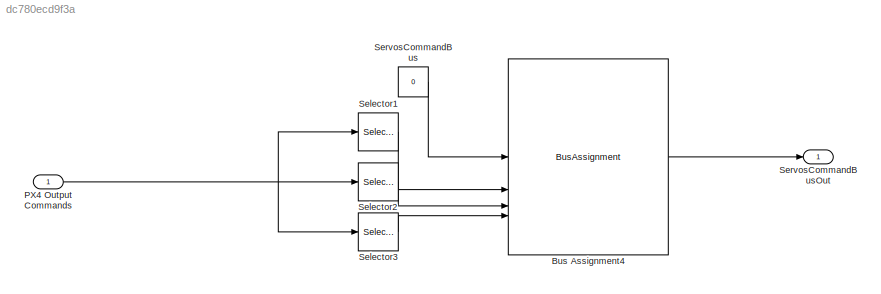
MODEL slx_dc780ecd9f3a
KIND model
BLOCK [BusAssignment] Bus Assignment4
  AssignedSignals = ServosCommandF16Bus.cmdElevator_nd,ServosCommandF16Bus.cmdAileron_nd,ServosCommandF16Bus.cmdRudder_nd
BLOCK [Inport] PX4 Output Commands
  PortDimensions = 16
BLOCK [Selector] Selector1
  IndexOptions = Index vector (dialog)
  Indices = 3
  InputPortWidth = 16
  OutputSizes = 1
BLOCK [Selector] Selector2
  IndexOptions = Index vector (dialog)
  Indices = 2
  InputPortWidth = 16
  OutputSizes = 1
BLOCK [Selector] Selector3
  IndexOptions = Index vector (dialog)
  Indices = 4
  InputPortWidth = 16
  OutputSizes = 1
BLOCK [Constant] ServosCommandBus
  OutDataTypeStr = Bus: ServosCommandBus
  Value = 0
BLOCK [Outport] ServosCommandBusOut
  OutDataTypeStr = Bus: ServosCommandBus
LINE Bus Assignment4:1 -> ServosCommandBusOut:1
NET PX4 Output Commands:1 -> Selector1:1, Selector2:1, Selector3:1
LINE Selector1:1 -> Bus Assignment4:2
LINE Selector2:1 -> Bus Assignment4:3
LINE Selector3:1 -> Bus Assignment4:4
LINE ServosCommandBus:1 -> Bus Assignment4:1
note: NET lines group one-source signal fan-out (src -> all destinations, sorted); 1:1 wires keep LINE
